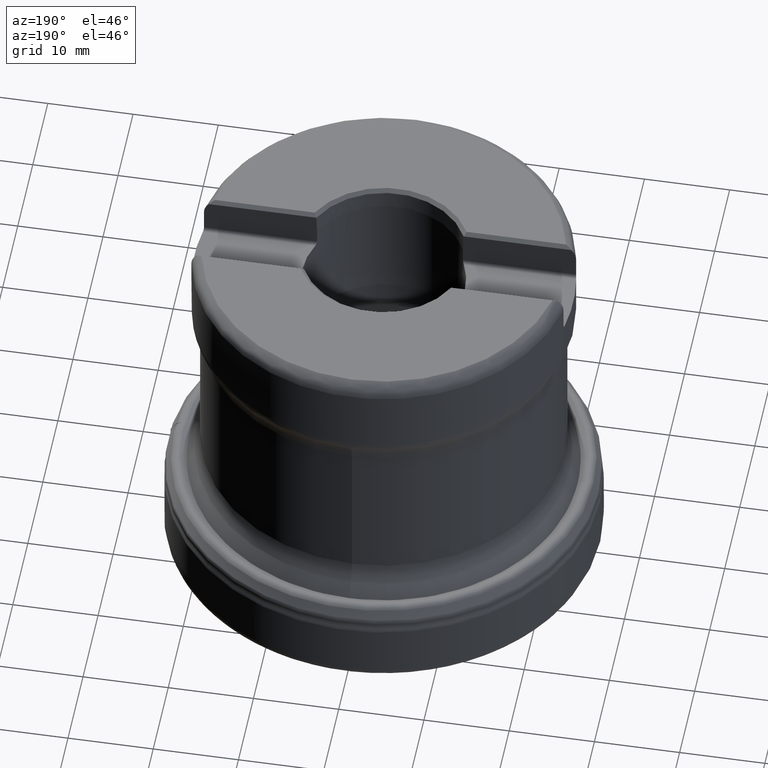
[diagram: clean part render]
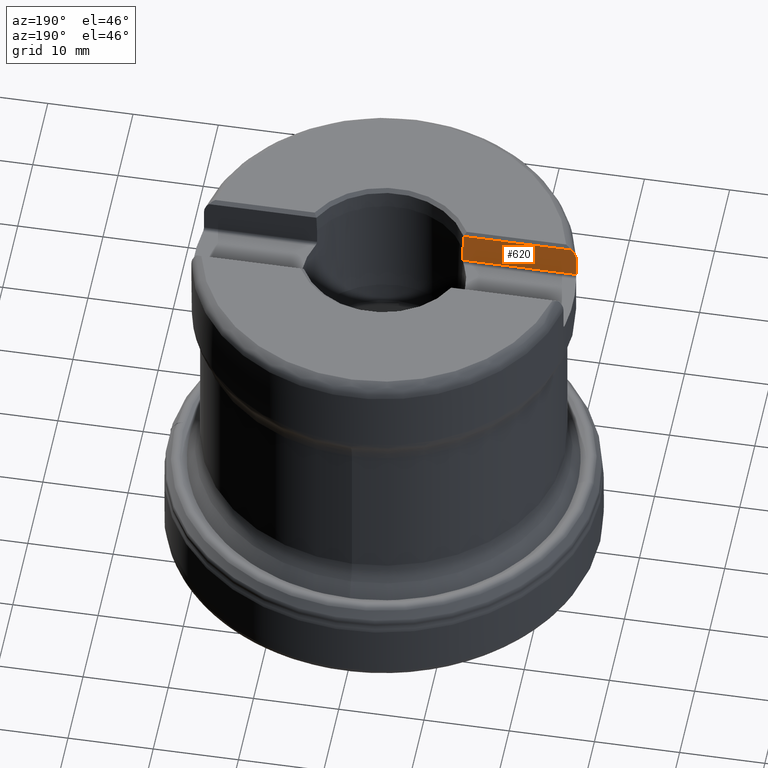
[diagram: same view with one face highlighted and labeled with its STEP entity id]
A machine part, auxiliary view. The second image highlights one B-rep face of the part: STEP entity #620.
In plain terms, the highlighted planar face has unit normal (0, 1, -0).
Its self-contained STEP definition (entity closure, byte-faithful):
#384=LINE('',#4187,#447);
#391=LINE('',#4230,#454);
#398=LINE('',#4527,#461);
#403=LINE('',#4606,#466);
#447=VECTOR('',#3125,1.);
#454=VECTOR('',#3160,1.);
#461=VECTOR('',#3221,1.);
#466=VECTOR('',#3242,1.);
#521=PLANE('',#2870);
#620=ADVANCED_FACE('',(#806),#521,.T.);
#806=FACE_OUTER_BOUND('',#926,.T.);
#926=EDGE_LOOP('',(#1374,#1375,#1376,#1377,#1378,#1379));
#1374=ORIENTED_EDGE('',*,*,#2257,.F.);
#1375=ORIENTED_EDGE('',*,*,#2269,.T.);
#1376=ORIENTED_EDGE('',*,*,#2332,.T.);
#1377=ORIENTED_EDGE('',*,*,#2333,.T.);
#1378=ORIENTED_EDGE('',*,*,#2321,.T.);
#1379=ORIENTED_EDGE('',*,*,#2287,.T.);
#2001=VERTEX_POINT('',#4107);
#2002=VERTEX_POINT('',#4118);
#2012=VERTEX_POINT('',#4186);
#2023=VERTEX_POINT('',#4231);
#2048=VERTEX_POINT('',#4528);
#2055=VERTEX_POINT('',#4605);
#2257=EDGE_CURVE('',#2001,#2002,#2626,.T.);
#2269=EDGE_CURVE('',#2001,#2012,#384,.T.);
#2287=EDGE_CURVE('',#2023,#2002,#391,.T.);
#2321=EDGE_CURVE('',#2048,#2023,#398,.T.);
#2332=EDGE_CURVE('',#2012,#2055,#2649,.T.);
#2333=EDGE_CURVE('',#2055,#2048,#403,.T.);
#2626=B_SPLINE_CURVE_WITH_KNOTS('',3,(#4108,#4109,#4110,#4111,#4112,#4113,
#4114,#4115,#4116,#4117),.UNSPECIFIED.,.F.,.F.,(4,3,3,4),(0.,0.357475147391698,
0.631470029209992,1.),.UNSPECIFIED.);
#2649=B_SPLINE_CURVE_WITH_KNOTS('',3,(#4598,#4599,#4600,#4601,#4602,#4603,
#4604),.UNSPECIFIED.,.F.,.F.,(4,3,4),(0.,0.383952928825357,1.),
 .UNSPECIFIED.);
#2870=AXIS2_PLACEMENT_3D('',#4607,#3243,#3244);
#3125=DIRECTION('',(1.,0.,0.));
#3160=DIRECTION('',(0.,1.17145536458252E-15,1.));
#3221=DIRECTION('',(-1.,0.,0.));
#3242=DIRECTION('',(0.,-1.17145536458252E-15,-1.));
#3243=DIRECTION('',(0.,1.,-1.26409695217795E-15));
#3244=DIRECTION('',(0.,1.2637460522491E-15,1.));
#4107=CARTESIAN_POINT('',(-21.2469799262605,-4.17499999999995,44.0500000000001));
#4108=CARTESIAN_POINT('',(-21.2469799262605,-4.17499999999995,44.0500000000001));
#4109=CARTESIAN_POINT('',(-21.3772985676967,-4.17499999999995,43.9195431182447));
#4110=CARTESIAN_POINT('',(-21.4906113524925,-4.17499999999995,43.7696092681629));
#4111=CARTESIAN_POINT('',(-21.580233497771,-4.17499999999995,43.60845773271));
#4112=CARTESIAN_POINT('',(-21.6495163514553,-4.17499999999995,43.4838787213831));
#4113=CARTESIAN_POINT('',(-21.7056395857914,-4.17499999999995,43.3510304224226));
#4114=CARTESIAN_POINT('',(-21.7465470159613,-4.17499999999995,43.2144777731084));
#4115=CARTESIAN_POINT('',(-21.8011211838264,-4.17499999999995,43.0323043348078));
#4116=CARTESIAN_POINT('',(-21.8293380568445,-4.17499999999995,42.84017229404));
#4117=CARTESIAN_POINT('',(-21.8293380568445,-4.17499999999995,42.65));
#4118=CARTESIAN_POINT('',(-21.8293380568445,-4.17499999999995,42.65));
#4186=CARTESIAN_POINT('',(-8.64276478927566,-4.17499999999995,44.05));
#4187=CARTESIAN_POINT('',(-8.66602790459634,-4.17499999999995,44.05));
#4230=CARTESIAN_POINT('',(-21.8293380568445,-4.175,5.27760477534295E-15));
#4231=CARTESIAN_POINT('',(-21.8293380568445,-4.17499999999995,40.1));
#4527=CARTESIAN_POINT('',(27.,-4.17499999999995,40.1));
#4528=CARTESIAN_POINT('',(-8.5612499087458,-4.17499999999995,40.1));
#4598=CARTESIAN_POINT('',(-8.64276478927566,-4.17499999999995,44.05));
#4599=CARTESIAN_POINT('',(-8.6323415294231,-4.17499999999995,43.7812325858461));
#4600=CARTESIAN_POINT('',(-8.62191470745181,-4.17499999999995,43.5124653098131));
#4601=CARTESIAN_POINT('',(-8.6114842844197,-4.17499999999995,43.2436981735551));
#4602=CARTESIAN_POINT('',(-8.5947488175009,-4.17499999999995,42.8124650870485));
#4603=CARTESIAN_POINT('',(-8.57800408030153,-4.17499999999995,42.3812323602033));
#4604=CARTESIAN_POINT('',(-8.5612499087458,-4.17499999999995,41.95));
#4605=CARTESIAN_POINT('',(-8.5612499087458,-4.17499999999995,41.95));
#4606=CARTESIAN_POINT('',(-8.5612499087458,-4.17499999999994,44.65));
#4607=CARTESIAN_POINT('',(27.,-4.17499999999994,49.0625526127233));